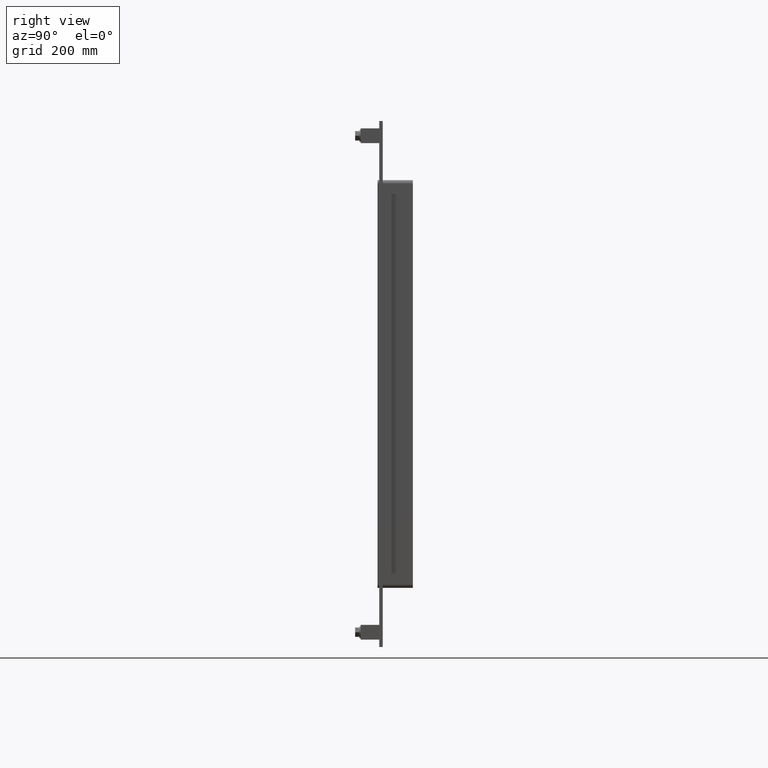
[diagram: clean part render]
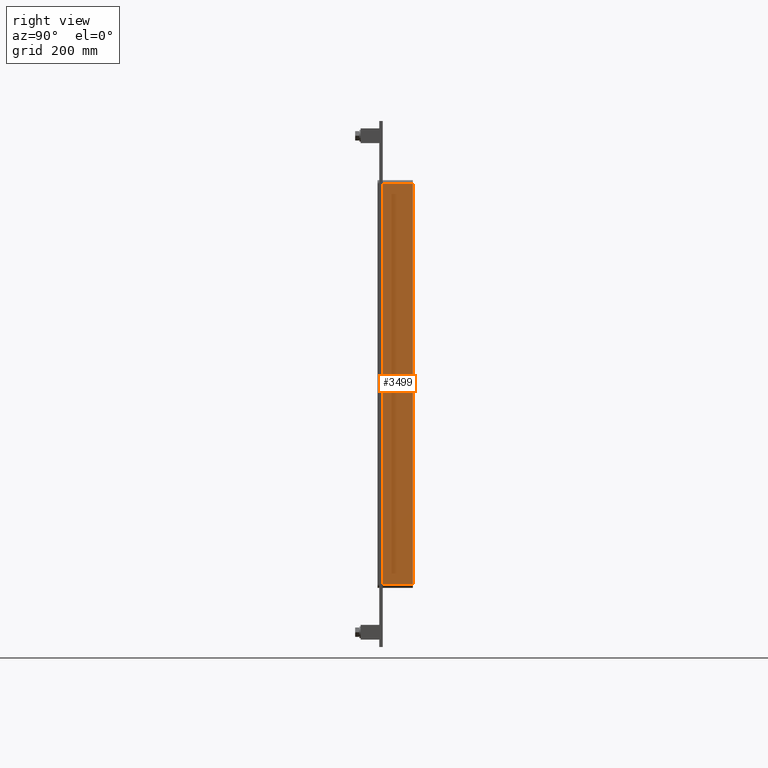
[diagram: same view with one face highlighted and labeled with its STEP entity id]
A machine part, right view. The second image highlights one B-rep face of the part: STEP entity #3499.
In plain terms, the highlighted planar face has unit normal (1, 0, 0).
Its self-contained STEP definition (entity closure, byte-faithful):
#1441=CARTESIAN_POINT('',(327.25,57.0,339.00000000000006));
#1442=VERTEX_POINT('',#1441);
#1450=CARTESIAN_POINT('',(327.25,57.0,-339.0));
#1451=VERTEX_POINT('',#1450);
#1452=CARTESIAN_POINT('',(327.25,57.0,339.00000000000006));
#1453=DIRECTION('',(0.0,0.0,-1.0));
#1454=VECTOR('',#1453,678.0);
#1455=LINE('',#1452,#1454);
#1456=EDGE_CURVE('',#1442,#1451,#1455,.T.);
#2943=CARTESIAN_POINT('',(327.25,6.000000000000001,-339.00000000000006));
#2944=VERTEX_POINT('',#2943);
#2952=CARTESIAN_POINT('',(327.25,6.000000000000001,339.00000000000006));
#2953=VERTEX_POINT('',#2952);
#2954=CARTESIAN_POINT('',(327.25,6.000000000000001,339.00000000000006));
#2955=DIRECTION('',(0.0,0.0,-1.0));
#2956=VECTOR('',#2955,678.0);
#2957=LINE('',#2954,#2956);
#2958=EDGE_CURVE('',#2953,#2944,#2957,.T.);
#3263=CARTESIAN_POINT('',(327.25,57.0,-339.00000000000006));
#3264=DIRECTION('',(0.0,-1.0,0.0));
#3265=VECTOR('',#3264,51.0);
#3266=LINE('',#3263,#3265);
#3267=EDGE_CURVE('',#1451,#2944,#3266,.T.);
#3477=CARTESIAN_POINT('',(327.25,6.000000000000001,339.00000000000006));
#3478=DIRECTION('',(0.0,1.0,0.0));
#3479=VECTOR('',#3478,51.0);
#3480=LINE('',#3477,#3479);
#3481=EDGE_CURVE('',#2953,#1442,#3480,.T.);
#3488=CARTESIAN_POINT('',(327.25,0.0,345.00000000000006));
#3489=DIRECTION('',(1.0,0.0,0.0));
#3490=DIRECTION('',(0.0,0.0,-1.0));
#3491=AXIS2_PLACEMENT_3D('',#3488,#3489,#3490);
#3492=PLANE('',#3491);
#3493=ORIENTED_EDGE('',*,*,#2958,.T.);
#3494=ORIENTED_EDGE('',*,*,#3267,.F.);
#3495=ORIENTED_EDGE('',*,*,#1456,.F.);
#3496=ORIENTED_EDGE('',*,*,#3481,.F.);
#3497=EDGE_LOOP('',(#3493,#3494,#3495,#3496));
#3498=FACE_OUTER_BOUND('',#3497,.T.);
#3499=ADVANCED_FACE('',(#3498),#3492,.T.);